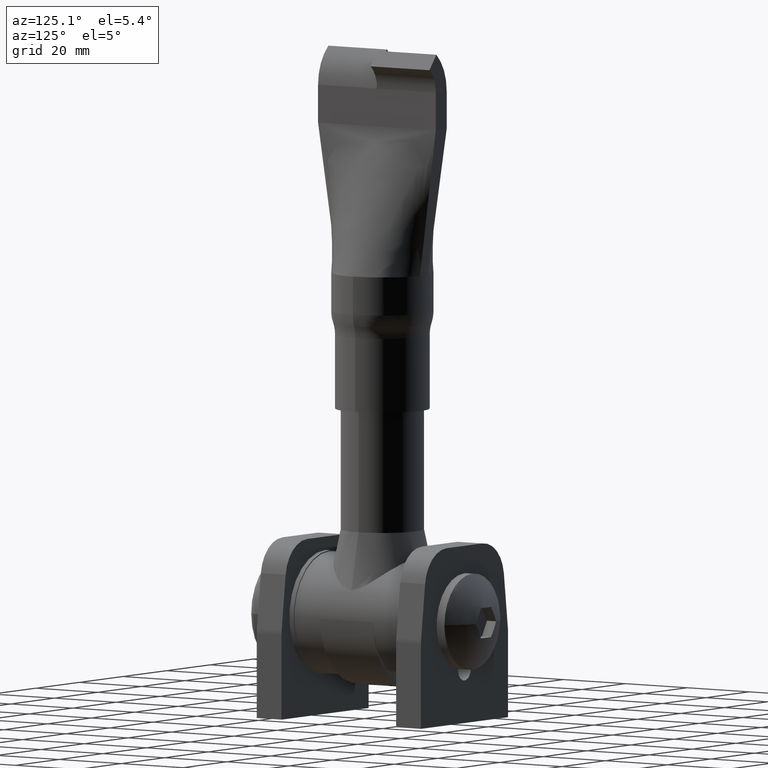
[diagram: clean part render]
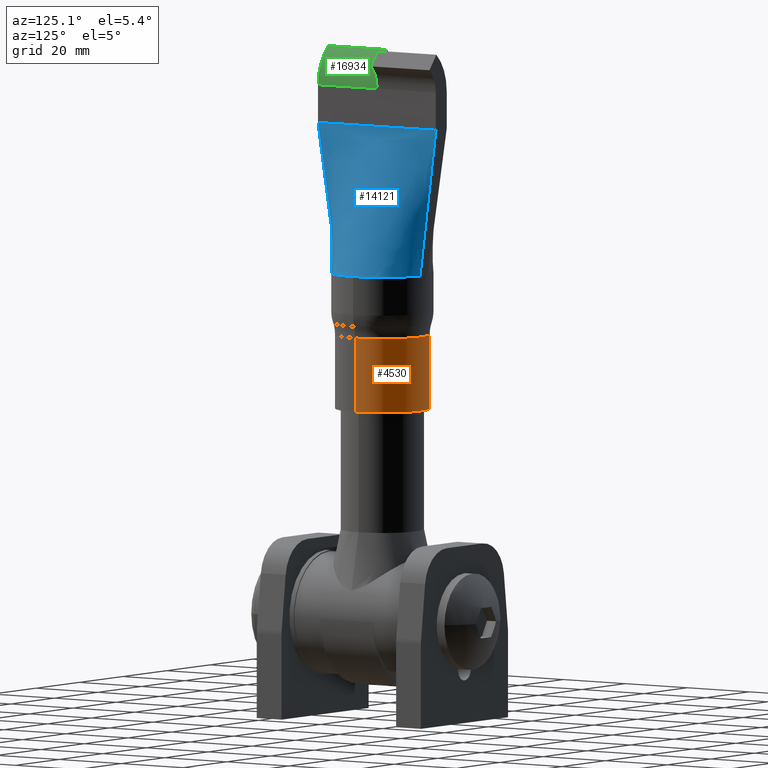
[diagram: same view with three faces highlighted in distinct colors, each labeled with its STEP entity id]
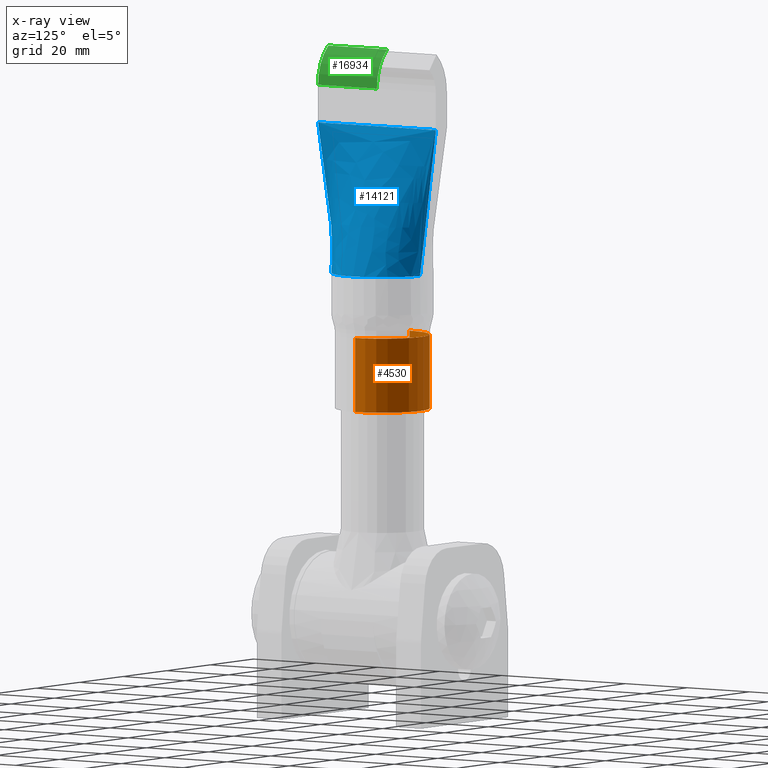
[diagram: x-ray of the same camera — body ghosted, the three highlighted faces saturated]
A machine part, auxiliary view with three faces highlighted in distinct colors.
The next image is the same camera in x-ray (body ghosted, the three faces saturated) — at least one of them is partly hidden behind the body in this view.
Their STEP definitions:

[orange] entity #4530 — the highlighted cylindrical surface (partial cylindrical patch) has radius 12.5 mm, axis along (-0, -0, -1).
#552 = AXIS2_PLACEMENT_3D ( 'NONE', #2511, #5580, #16407 ) ;
#1110 = LINE ( 'NONE', #7463, #17136 ) ;
#1958 = EDGE_CURVE ( 'NONE', #2728, #19143, #1110, .T. ) ;
#2511 = CARTESIAN_POINT ( 'NONE',  ( 0.0000000000000000000, 0.0000000000000000000, 0.0000000000000000000 ) ) ;
#2728 = VERTEX_POINT ( 'NONE', #11060 ) ;
#2984 = DIRECTION ( 'NONE',  ( -0.0000000000000000000, -0.0000000000000000000, -1.000000000000000000 ) ) ;
#3355 = LINE ( 'NONE', #18503, #19380 ) ;
#4352 = CARTESIAN_POINT ( 'NONE',  ( 0.0000000000000000000, 0.0000000000000000000, 24.00000000000000000 ) ) ;
#4530 = ADVANCED_FACE ( 'NONE', ( #20133 ), #15738, .T. ) ;
#5189 = ORIENTED_EDGE ( 'NONE', *, *, #14410, .T. ) ;
#5375 = CARTESIAN_POINT ( 'NONE',  ( 0.0000000000000000000, 0.0000000000000000000, 19.64110105645932300 ) ) ;
#5580 = DIRECTION ( 'NONE',  ( 0.0000000000000000000, 0.0000000000000000000, 1.000000000000000000 ) ) ;
#6534 = CARTESIAN_POINT ( 'NONE',  ( -12.50000000000000000, 0.0000000000000000000, 19.64110105645932300 ) ) ;
#7463 = CARTESIAN_POINT ( 'NONE',  ( 12.50000000000000000, 1.530808498934191500E-015, 24.00000000000000000 ) ) ;
#7758 = EDGE_LOOP ( 'NONE', ( #18761, #12430, #5189, #11415 ) ) ;
#8292 = AXIS2_PLACEMENT_3D ( 'NONE', #4352, #12292, #13739 ) ;
#8785 = CIRCLE ( 'NONE', #10235, 12.50000000000000000 ) ;
#8961 = DIRECTION ( 'NONE',  ( -0.0000000000000000000, -0.0000000000000000000, -1.000000000000000000 ) ) ;
#9144 = EDGE_CURVE ( 'NONE', #18321, #2728, #8785, .T. ) ;
#10235 = AXIS2_PLACEMENT_3D ( 'NONE', #5375, #16519, #18793 ) ;
#11060 = CARTESIAN_POINT ( 'NONE',  ( 12.50000000000000000, 1.530808498934191500E-015, 19.64110105645932300 ) ) ;
#11164 = CIRCLE ( 'NONE', #552, 12.50000000000000000 ) ;
#11415 = ORIENTED_EDGE ( 'NONE', *, *, #17941, .F. ) ;
#12292 = DIRECTION ( 'NONE',  ( -0.0000000000000000000, -0.0000000000000000000, -1.000000000000000000 ) ) ;
#12430 = ORIENTED_EDGE ( 'NONE', *, *, #1958, .T. ) ;
#12610 = CARTESIAN_POINT ( 'NONE',  ( 12.50000000000000000, 1.530808498934191500E-015, 0.0000000000000000000 ) ) ;
#13636 = VERTEX_POINT ( 'NONE', #18247 ) ;
#13739 = DIRECTION ( 'NONE',  ( -1.000000000000000000, 0.0000000000000000000, 0.0000000000000000000 ) ) ;
#14410 = EDGE_CURVE ( 'NONE', #19143, #13636, #11164, .T. ) ;
#15738 = CYLINDRICAL_SURFACE ( 'NONE', #8292, 12.50000000000000000 ) ;
#16407 = DIRECTION ( 'NONE',  ( 1.000000000000000000, 0.0000000000000000000, 0.0000000000000000000 ) ) ;
#16519 = DIRECTION ( 'NONE',  ( -0.0000000000000000000, -0.0000000000000000000, -1.000000000000000000 ) ) ;
#17136 = VECTOR ( 'NONE', #8961, 1000.000000000000000 ) ;
#17941 = EDGE_CURVE ( 'NONE', #18321, #13636, #3355, .T. ) ;
#18247 = CARTESIAN_POINT ( 'NONE',  ( -12.50000000000000000, 0.0000000000000000000, 0.0000000000000000000 ) ) ;
#18321 = VERTEX_POINT ( 'NONE', #6534 ) ;
#18503 = CARTESIAN_POINT ( 'NONE',  ( -12.50000000000000000, 0.0000000000000000000, 24.00000000000000000 ) ) ;
#18761 = ORIENTED_EDGE ( 'NONE', *, *, #9144, .T. ) ;
#18793 = DIRECTION ( 'NONE',  ( 1.000000000000000000, 0.0000000000000000000, 0.0000000000000000000 ) ) ;
#19143 = VERTEX_POINT ( 'NONE', #12610 ) ;
#19380 = VECTOR ( 'NONE', #2984, 1000.000000000000000 ) ;
#20133 = FACE_OUTER_BOUND ( 'NONE', #7758, .T. ) ;

[blue] entity #14121 — the highlighted face is a freeform B-spline surface patch.
#3 = CARTESIAN_POINT ( 'NONE',  ( 9.826572572018319500, 9.376442569900213200, 35.61000000000000700 ) ) ;
#76 = CARTESIAN_POINT ( 'NONE',  ( 12.65540720196998200, 4.793425212886243800, 36.00000000000000000 ) ) ;
#148 = CARTESIAN_POINT ( 'NONE',  ( 2.500000000000000400, 15.83333333333333400, 75.00000000000001400 ) ) ;
#212 = CARTESIAN_POINT ( 'NONE',  ( 2.500000000000000900, 19.25333333333333400, 75.00000000000001400 ) ) ;
#263 = B_SPLINE_SURFACE_WITH_KNOTS ( 'NONE', 3, 1, ( 
 ( #13440, #5702, #19743, #1199 ),
 ( #5899, #16592, #8758, #5824 ),
 ( #1075, #11997, #19881, #19612 ),
 ( #10305, #16662, #18219, #1269 ),
 ( #8825, #12131, #10502, #2847 ),
 ( #11930, #13712, #16455, #18023 ),
 ( #15001, #18295, #1002, #16521 ),
 ( #19670, #8958, #13568, #4259 ),
 ( #4324, #12070, #2631, #13508 ),
 ( #4194, #15065, #19813, #5768 ),
 ( #15199, #16729, #13838, #3582 ),
 ( #3111, #18839, #12728, #499 ),
 ( #5474, #15289, #14210, #8034 ),
 ( #942, #15272, #5976, #12401 ),
 ( #2123, #13592, #16682, #15543 ),
 ( #815, #9980, #15779, #13831 ),
 ( #2330, #12362, #1428, #15301 ),
 ( #4633, #16975, #12435, #1370 ),
 ( #20065, #18686, #16908, #9132 ),
 ( #12234, #7637, #2950, #10744 ),
 ( #4708, #14024, #13806, #15490 ),
 ( #18469, #7841, #15362, #4430 ),
 ( #1498, #19993, #9196, #9260 ),
 ( #9326, #76, #6004, #10944 ),
 ( #12298, #4500, #6210, #6071 ),
 ( #16840, #17042, #15558, #3094 ),
 ( #10813, #20134, #1571, #3027 ),
 ( #3, #18398, #7776, #4565 ),
 ( #6279, #9395, #17115, #13875 ),
 ( #15431, #6137, #18617, #7559 ),
 ( #7711, #18545, #10879, #3157 ),
 ( #1643, #10670, #13952, #12508 ),
 ( #3224, #4846, #9531, #17436 ),
 ( #15625, #8174, #148, #5041 ),
 ( #14343, #6601, #9722, #3418 ),
 ( #284, #1844, #11200, #8107 ),
 ( #7974, #11268, #19026, #15691 ),
 ( #6418, #14156, #18826, #12709 ),
 ( #1712, #4977, #212, #15882 ),
 ( #11075, #418, #1973, #12838 ) ),
 .UNSPECIFIED., .F., .F., .F.,
 ( 4, 3, 2, 2, 2, 2, 2, 2, 2, 2, 2, 2, 2, 2, 2, 2, 2, 3, 4 ),
 ( 2, 1, 1, 2 ),
 ( -0.01000000000000000000, 0.0000000000000000000, 0.06249999999999997200, 0.1250000000000000000, 0.1875000000000000300, 0.2500000000000000600, 0.3125000000000000600, 0.3750000000000001100, 0.4375000000000001100, 0.5000000000000001100, 0.5625000000000001100, 0.6250000000000000000, 0.6875000000000000000, 0.7500000000000000000, 0.8125000000000000000, 0.8749999999999998900, 0.9374999999999998900, 1.000000000000000000, 1.010000000000000000 ),
 ( -0.01000000000000000000, 0.0000000000000000000, 1.000000000000000000, 1.012212258122319400 ),
 .UNSPECIFIED. ) ;
#284 = CARTESIAN_POINT ( 'NONE',  ( 2.312203711858454200, 13.26291487679088900, 35.61000000000000700 ) ) ;
#418 = CARTESIAN_POINT ( 'NONE',  ( 1.495730882273296000, 13.41955470527702600, 36.00000000000000000 ) ) ;
#499 = CARTESIAN_POINT ( 'NONE',  ( 2.426279683299224400, -10.28923208014978200, 75.47627806677046200 ) ) ;
#777 = CIRCLE ( 'NONE', #2973, 13.50000000000000000 ) ;
#815 = CARTESIAN_POINT ( 'NONE',  ( 11.96129968607907800, -6.513138373428831500, 35.60999999999999200 ) ) ;
#942 = CARTESIAN_POINT ( 'NONE',  ( 10.41438548326907900, -8.737926560234189600, 35.60999999999999200 ) ) ;
#1002 = CARTESIAN_POINT ( 'NONE',  ( 2.499999999999996400, -15.83333333333333000, 75.00000000000001400 ) ) ;
#1030 = CARTESIAN_POINT ( 'NONE',  ( 0.0000000000000000000, 0.0000000000000000000, 36.00000000000000000 ) ) ;
#1075 = CARTESIAN_POINT ( 'NONE',  ( 1.664394249639253200, -13.33896963059165600, 35.60999999999999200 ) ) ;
#1199 = CARTESIAN_POINT ( 'NONE',  ( 2.512264393689948700, -19.45279049646312300, 75.47627806677046200 ) ) ;
#1269 = CARTESIAN_POINT ( 'NONE',  ( 2.509023198865763000, -19.06857631137982200, 75.47627806677046200 ) ) ;
#1370 = CARTESIAN_POINT ( 'NONE',  ( 2.372160639607965700, -3.157996119076630600, 75.47627806677046200 ) ) ;
#1428 = CARTESIAN_POINT ( 'NONE',  ( 2.499999999999997800, -3.958333333333320600, 74.99999999999998600 ) ) ;
#1498 = CARTESIAN_POINT ( 'NONE',  ( 13.07279928926279000, 3.883753791603683100, 35.60999999999999200 ) ) ;
#1571 = CARTESIAN_POINT ( 'NONE',  ( 2.500000000000000400, 7.916666666666675800, 75.00000000000001400 ) ) ;
#1643 = CARTESIAN_POINT ( 'NONE',  ( 6.013042554120897200, 12.11037872755055000, 35.60999999999999200 ) ) ;
#1712 = CARTESIAN_POINT ( 'NONE',  ( 1.575041220367642500, 13.34945994146072200, 35.60999999999999200 ) ) ;
#1844 = CARTESIAN_POINT ( 'NONE',  ( 2.314063081047974500, 13.31187941596457600, 36.00000000000001400 ) ) ;
#1862 = EDGE_LOOP ( 'NONE', ( #4554, #18169, #6068, #8575, #7115 ) ) ;
#1973 = CARTESIAN_POINT ( 'NONE',  ( 2.500000000000000900, 19.38000000000000300, 75.00000000000001400 ) ) ;
#2059 = AXIS2_PLACEMENT_3D ( 'NONE', #7213, #18111, #18046 ) ;
#2123 = CARTESIAN_POINT ( 'NONE',  ( 11.48194619633858700, -7.306340436564427800, 35.61000000000002100 ) ) ;
#2206 = LINE ( 'NONE', #6659, #5851 ) ;
#2330 = CARTESIAN_POINT ( 'NONE',  ( 12.75696127398968800, -4.801776131681775100, 35.61000000000002100 ) ) ;
#2631 = CARTESIAN_POINT ( 'NONE',  ( 2.499999999999996900, -13.45833333333332900, 75.00000000000001400 ) ) ;
#2847 = CARTESIAN_POINT ( 'NONE',  ( 2.502270709648707600, -18.26813009245628200, 75.47627806677046200 ) ) ;
#2950 = CARTESIAN_POINT ( 'NONE',  ( 2.499999999999997800, -0.7916666666666556400, 75.00000000000001400 ) ) ;
#2973 = AXIS2_PLACEMENT_3D ( 'NONE', #1030, #13389, #8980 ) ;
#3027 = CARTESIAN_POINT ( 'NONE',  ( 2.404304437226515700, 7.906736530225335200, 75.47627806677049000 ) ) ;
#3094 = CARTESIAN_POINT ( 'NONE',  ( 2.391396192682701200, 6.321568369076403300, 75.47627806677049000 ) ) ;
#3111 = CARTESIAN_POINT ( 'NONE',  ( 8.596949402969132200, -10.49301619248057600, 35.61000000000002100 ) ) ;
#3157 = CARTESIAN_POINT ( 'NONE',  ( 2.449659181008081400, 12.67738901128009000, 75.47627806677049000 ) ) ;
#3224 = CARTESIAN_POINT ( 'NONE',  ( 4.735606889802664200, 12.64542937017763300, 35.60999999999999200 ) ) ;
#3418 = CARTESIAN_POINT ( 'NONE',  ( 2.495202280975660400, 17.46814921799465400, 75.47627806677046200 ) ) ;
#3582 = CARTESIAN_POINT ( 'NONE',  ( 2.434037494894349100, -11.08468754302523800, 75.47627806677046200 ) ) ;
#4194 = CARTESIAN_POINT ( 'NONE',  ( 6.663376393831208900, -11.77988815682196100, 35.61000000000002100 ) ) ;
#4259 = CARTESIAN_POINT ( 'NONE',  ( 2.472968506536327800, -15.07064039774295400, 75.47627806677046200 ) ) ;
#4324 = CARTESIAN_POINT ( 'NONE',  ( 6.013042554120896300, -12.11037872755055000, 35.60999999999999200 ) ) ;
#4430 = CARTESIAN_POINT ( 'NONE',  ( 2.367001460569730900, 1.578573858738839600, 75.47627806677046200 ) ) ;
#4500 = CARTESIAN_POINT ( 'NONE',  ( 11.86762345156344600, 6.503519841678707900, 36.00000000000001400 ) ) ;
#4554 = ORIENTED_EDGE ( 'NONE', *, *, #11292, .T. ) ;
#4565 = CARTESIAN_POINT ( 'NONE',  ( 2.411411885741195200, 8.700254994273084500, 75.47627806677049000 ) ) ;
#4633 = CARTESIAN_POINT ( 'NONE',  ( 13.07279928926279300, -3.883753791603685700, 35.60999999999999200 ) ) ;
#4708 = CARTESIAN_POINT ( 'NONE',  ( 13.61000000000000500, 0.9886205055789750700, 35.61000000000000700 ) ) ;
#4846 = CARTESIAN_POINT ( 'NONE',  ( 4.713472168121449500, 12.66915449192504900, 36.00000000000000000 ) ) ;
#4977 = CARTESIAN_POINT ( 'NONE',  ( 1.584199228086774700, 13.40791413345946400, 36.00000000000000000 ) ) ;
#5041 = CARTESIAN_POINT ( 'NONE',  ( 2.480551781824935600, 15.86940375079042000, 75.47627806677046200 ) ) ;
#5474 = CARTESIAN_POINT ( 'NONE',  ( 9.826572572018317700, -9.376442569900216700, 35.60999999999999200 ) ) ;
#5702 = CARTESIAN_POINT ( 'NONE',  ( 1.495730882273293800, -13.41955470527702800, 36.00000000000000000 ) ) ;
#5768 = CARTESIAN_POINT ( 'NONE',  ( 2.449659181008078300, -12.67738901128007700, 75.47627806677046200 ) ) ;
#5771 = DIRECTION ( 'NONE',  ( -1.141265444721583800E-016, -1.000000000000000000, 0.0000000000000000000 ) ) ;
#5824 = CARTESIAN_POINT ( 'NONE',  ( 2.511183995415220000, -19.32471910143535600, 75.47627806677046200 ) ) ;
#5851 = VECTOR ( 'NONE', #17362, 1000.000000000000100 ) ;
#5899 = CARTESIAN_POINT ( 'NONE',  ( 1.575041220367639600, -13.34945994146072800, 35.60999999999999200 ) ) ;
#5976 = CARTESIAN_POINT ( 'NONE',  ( 2.499999999999997300, -7.916666666666659000, 75.00000000000001400 ) ) ;
#6004 = CARTESIAN_POINT ( 'NONE',  ( 2.499999999999999100, 3.958333333333343300, 75.00000000000001400 ) ) ;
#6017 = EDGE_CURVE ( 'NONE', #11182, #11294, #11951, .T. ) ;
#6056 = CARTESIAN_POINT ( 'NONE',  ( 2.500000000000000900, 19.00000000000000000, 74.99999999999998600 ) ) ;
#6068 = ORIENTED_EDGE ( 'NONE', *, *, #6017, .F. ) ;
#6071 = CARTESIAN_POINT ( 'NONE',  ( 2.385600164416814100, 5.529920267417656600, 75.47627806677049000 ) ) ;
#6137 = CARTESIAN_POINT ( 'NONE',  ( 7.901335645296690300, 10.97244395658176000, 36.00000000000002800 ) ) ;
#6210 = CARTESIAN_POINT ( 'NONE',  ( 2.499999999999999600, 5.541666666666675800, 75.00000000000001400 ) ) ;
#6279 = CARTESIAN_POINT ( 'NONE',  ( 8.596949402969132200, 10.49301619248057400, 35.61000000000000700 ) ) ;
#6418 = CARTESIAN_POINT ( 'NONE',  ( 1.664394249639255900, 13.33896963059165200, 35.60999999999999200 ) ) ;
#6601 = CARTESIAN_POINT ( 'NONE',  ( 2.892860925169243200, 13.20102113966139300, 36.00000000000001400 ) ) ;
#6659 = CARTESIAN_POINT ( 'NONE',  ( 2.130567959856863000, -16.19231649491217300, 55.50000000000000000 ) ) ;
#7115 = ORIENTED_EDGE ( 'NONE', *, *, #13807, .F. ) ;
#7213 = CARTESIAN_POINT ( 'NONE',  ( 0.0000000000000000000, 0.0000000000000000000, 36.00000000000000000 ) ) ;
#7559 = CARTESIAN_POINT ( 'NONE',  ( 2.434037494894352600, 11.08468754302525400, 75.47627806677049000 ) ) ;
#7594 = EDGE_CURVE ( 'NONE', #16131, #11294, #777, .T. ) ;
#7637 = CARTESIAN_POINT ( 'NONE',  ( 13.49999999999999800, -0.9866704675699420300, 36.00000000000001400 ) ) ;
#7711 = CARTESIAN_POINT ( 'NONE',  ( 6.663376393831210700, 11.77988815682195800, 35.60999999999999200 ) ) ;
#7776 = CARTESIAN_POINT ( 'NONE',  ( 2.500000000000000400, 8.708333333333342800, 75.00000000000001400 ) ) ;
#7841 = CARTESIAN_POINT ( 'NONE',  ( 13.39057716420164300, 1.973062615734199500, 36.00000000000000000 ) ) ;
#7846 = VECTOR ( 'NONE', #19681, 1000.000000000000200 ) ;
#7974 = CARTESIAN_POINT ( 'NONE',  ( 1.753747278910869500, 13.32847931972258200, 35.60999999999999200 ) ) ;
#8034 = CARTESIAN_POINT ( 'NONE',  ( 2.411411885741191700, -8.700254994273068500, 75.47627806677046200 ) ) ;
#8107 = CARTESIAN_POINT ( 'NONE',  ( 2.502270709648711100, 18.26813009245628200, 75.47627806677046200 ) ) ;
#8174 = CARTESIAN_POINT ( 'NONE',  ( 4.092516140771758500, 12.87970943382189200, 36.00000000000000000 ) ) ;
#8450 = CIRCLE ( 'NONE', #2059, 13.50000000000000000 ) ;
#8575 = ORIENTED_EDGE ( 'NONE', *, *, #13101, .T. ) ;
#8611 = VERTEX_POINT ( 'NONE', #12540 ) ;
#8758 = CARTESIAN_POINT ( 'NONE',  ( 2.499999999999996400, -19.25333333333333400, 75.00000000000001400 ) ) ;
#8825 = CARTESIAN_POINT ( 'NONE',  ( 2.312203711858449800, -13.26291487679088700, 35.60999999999999200 ) ) ;
#8958 = CARTESIAN_POINT ( 'NONE',  ( 4.713472168121447800, -12.66915449192504900, 36.00000000000001400 ) ) ;
#8980 = DIRECTION ( 'NONE',  ( 1.000000000000000000, 0.0000000000000000000, 0.0000000000000000000 ) ) ;
#9132 = CARTESIAN_POINT ( 'NONE',  ( 2.367001460569730000, -1.578573858738815200, 75.47627806677046200 ) ) ;
#9196 = CARTESIAN_POINT ( 'NONE',  ( 2.499999999999998700, 3.166666666666678100, 75.00000000000001400 ) ) ;
#9260 = CARTESIAN_POINT ( 'NONE',  ( 2.372160639607966600, 3.157996119076655500, 75.47627806677046200 ) ) ;
#9326 = CARTESIAN_POINT ( 'NONE',  ( 12.75696127398968300, 4.801776131681773300, 35.60999999999999200 ) ) ;
#9395 = CARTESIAN_POINT ( 'NONE',  ( 8.536583567296171200, 10.49102263281905000, 36.00000000000001400 ) ) ;
#9434 = VERTEX_POINT ( 'NONE', #11704 ) ;
#9531 = CARTESIAN_POINT ( 'NONE',  ( 2.500000000000000400, 15.04166666666666800, 75.00000000000001400 ) ) ;
#9722 = CARTESIAN_POINT ( 'NONE',  ( 2.500000000000000400, 17.41666666666666400, 75.00000000000001400 ) ) ;
#9980 = CARTESIAN_POINT ( 'NONE',  ( 11.86762345156344400, -6.503519841678710600, 36.00000000000000000 ) ) ;
#10305 = CARTESIAN_POINT ( 'NONE',  ( 1.753747278910866600, -13.32847931972258400, 35.60999999999999200 ) ) ;
#10491 = LINE ( 'NONE', #15070, #17192 ) ;
#10502 = CARTESIAN_POINT ( 'NONE',  ( 2.499999999999996400, -18.20833333333333200, 75.00000000000001400 ) ) ;
#10670 = CARTESIAN_POINT ( 'NONE',  ( 5.978259954575145600, 12.12372481275632200, 36.00000000000000000 ) ) ;
#10744 = CARTESIAN_POINT ( 'NONE',  ( 2.365665160654484300, -0.7892852299151913400, 75.47627806677046200 ) ) ;
#10813 = CARTESIAN_POINT ( 'NONE',  ( 10.41438548326907900, 8.737926560234187800, 35.60999999999999200 ) ) ;
#10879 = CARTESIAN_POINT ( 'NONE',  ( 2.500000000000000400, 12.66666666666667300, 75.00000000000001400 ) ) ;
#10944 = CARTESIAN_POINT ( 'NONE',  ( 2.375979545912279900, 3.948134975744390700, 75.47627806677049000 ) ) ;
#11075 = CARTESIAN_POINT ( 'NONE',  ( 1.485688191096028900, 13.35995025232979400, 35.60999999999999200 ) ) ;
#11182 = VERTEX_POINT ( 'NONE', #6056 ) ;
#11200 = CARTESIAN_POINT ( 'NONE',  ( 2.500000000000000400, 18.20833333333333200, 75.00000000000001400 ) ) ;
#11268 = CARTESIAN_POINT ( 'NONE',  ( 1.761135919713732200, 13.38463298982434000, 36.00000000000000000 ) ) ;
#11292 = EDGE_CURVE ( 'NONE', #9434, #16131, #8450, .T. ) ;
#11294 = VERTEX_POINT ( 'NONE', #11952 ) ;
#11704 = CARTESIAN_POINT ( 'NONE',  ( 1.761143528652265200, -13.38469061141342700, 36.00000000000000000 ) ) ;
#11930 = CARTESIAN_POINT ( 'NONE',  ( 2.896789534420932900, -13.15886468439133900, 35.60999999999999200 ) ) ;
#11944 = CARTESIAN_POINT ( 'NONE',  ( 13.50000000000000200, -1.684983764617499400E-015, 36.00000000000000700 ) ) ;
#11951 = LINE ( 'NONE', #15208, #7846 ) ;
#11952 = CARTESIAN_POINT ( 'NONE',  ( 1.761144577778942300, 13.38469859784188300, 36.00000000000000000 ) ) ;
#11997 = CARTESIAN_POINT ( 'NONE',  ( 1.672667573900250800, -13.39627356164190400, 36.00000000000000000 ) ) ;
#12070 = CARTESIAN_POINT ( 'NONE',  ( 5.978259954575145600, -12.12372481275632200, 36.00000000000000000 ) ) ;
#12131 = CARTESIAN_POINT ( 'NONE',  ( 2.314063081047970100, -13.31187941596457400, 36.00000000000000000 ) ) ;
#12234 = CARTESIAN_POINT ( 'NONE',  ( 13.60999999999999900, -0.9886205055789748500, 35.61000000000000700 ) ) ;
#12298 = CARTESIAN_POINT ( 'NONE',  ( 11.96129968607908200, 6.513138373428828000, 35.61000000000000700 ) ) ;
#12362 = CARTESIAN_POINT ( 'NONE',  ( 12.65540720196998800, -4.793425212886246500, 36.00000000000002800 ) ) ;
#12401 = CARTESIAN_POINT ( 'NONE',  ( 2.404304437226512500, -7.906736530225315600, 75.47627806677046200 ) ) ;
#12435 = CARTESIAN_POINT ( 'NONE',  ( 2.499999999999997800, -3.166666666666653600, 74.99999999999998600 ) ) ;
#12508 = CARTESIAN_POINT ( 'NONE',  ( 2.457522591618201500, 13.47463191707887200, 75.47627806677049000 ) ) ;
#12540 = CARTESIAN_POINT ( 'NONE',  ( 2.499999999999996400, -19.00000000000000000, 75.00000000000001400 ) ) ;
#12709 = CARTESIAN_POINT ( 'NONE',  ( 2.510103597140496100, 19.19664770640758900, 75.47627806677046200 ) ) ;
#12728 = CARTESIAN_POINT ( 'NONE',  ( 2.499999999999996900, -10.29166666666665900, 75.00000000000001400 ) ) ;
#12838 = CARTESIAN_POINT ( 'NONE',  ( 2.512264393689953600, 19.45279049646312300, 75.47627806677046200 ) ) ;
#13101 = EDGE_CURVE ( 'NONE', #11182, #8611, #10491, .T. ) ;
#13377 = FACE_OUTER_BOUND ( 'NONE', #1862, .T. ) ;
#13389 = DIRECTION ( 'NONE',  ( 0.0000000000000000000, 0.0000000000000000000, 1.000000000000000000 ) ) ;
#13440 = CARTESIAN_POINT ( 'NONE',  ( 1.485688191096026200, -13.35995025232979900, 35.60999999999999200 ) ) ;
#13508 = CARTESIAN_POINT ( 'NONE',  ( 2.457522591618198000, -13.47463191707886100, 75.47627806677046200 ) ) ;
#13568 = CARTESIAN_POINT ( 'NONE',  ( 2.499999999999996900, -15.04166666666666400, 75.00000000000001400 ) ) ;
#13592 = CARTESIAN_POINT ( 'NONE',  ( 11.39301603597880000, -7.296706702869070000, 36.00000000000002800 ) ) ;
#13712 = CARTESIAN_POINT ( 'NONE',  ( 2.892860925169240500, -13.20102113966139300, 36.00000000000000000 ) ) ;
#13806 = CARTESIAN_POINT ( 'NONE',  ( 2.499999999999998200, 0.7916666666666772900, 74.99999999999998600 ) ) ;
#13807 = EDGE_CURVE ( 'NONE', #9434, #8611, #2206, .T. ) ;
#13831 = CARTESIAN_POINT ( 'NONE',  ( 2.385600164416812300, -5.529920267417635300, 75.47627806677046200 ) ) ;
#13838 = CARTESIAN_POINT ( 'NONE',  ( 2.499999999999996900, -11.08333333333332500, 75.00000000000001400 ) ) ;
#13875 = CARTESIAN_POINT ( 'NONE',  ( 2.426279683299227900, 10.28923208014979600, 75.47627806677049000 ) ) ;
#13952 = CARTESIAN_POINT ( 'NONE',  ( 2.500000000000000400, 13.45833333333333700, 75.00000000000001400 ) ) ;
#14024 = CARTESIAN_POINT ( 'NONE',  ( 13.50000000000000400, 0.9866704675699424800, 36.00000000000001400 ) ) ;
#14121 = ADVANCED_FACE ( 'NONE', ( #13377 ), #263, .T. ) ;
#14156 = CARTESIAN_POINT ( 'NONE',  ( 1.672667573900253400, 13.39627356164190200, 36.00000000000000000 ) ) ;
#14210 = CARTESIAN_POINT ( 'NONE',  ( 2.499999999999996900, -8.708333333333325000, 75.00000000000001400 ) ) ;
#14343 = CARTESIAN_POINT ( 'NONE',  ( 2.896789534420935100, 13.15886468439133900, 35.61000000000000700 ) ) ;
#15001 = CARTESIAN_POINT ( 'NONE',  ( 4.108441302179472600, -12.85017319482678000, 35.61000000000000700 ) ) ;
#15065 = CARTESIAN_POINT ( 'NONE',  ( 6.622154845377434800, -11.78866814206795000, 36.00000000000002800 ) ) ;
#15070 = CARTESIAN_POINT ( 'NONE',  ( 2.500000000000000900, 19.00000000000000000, 75.00000000000001400 ) ) ;
#15199 = CARTESIAN_POINT ( 'NONE',  ( 7.955349001749661800, -10.97133506281424600, 35.61000000000002100 ) ) ;
#15208 = CARTESIAN_POINT ( 'NONE',  ( 2.130567959856866500, 16.19231649491217000, 55.50000000000000000 ) ) ;
#15272 = CARTESIAN_POINT ( 'NONE',  ( 10.33602523095948400, -8.729795274159263500, 36.00000000000000000 ) ) ;
#15289 = CARTESIAN_POINT ( 'NONE',  ( 9.754032249523085300, -9.369827626963910900, 36.00000000000000000 ) ) ;
#15301 = CARTESIAN_POINT ( 'NONE',  ( 2.375979545912278600, -3.948134975744367100, 75.47627806677046200 ) ) ;
#15362 = CARTESIAN_POINT ( 'NONE',  ( 2.499999999999998700, 1.583333333333345200, 75.00000000000001400 ) ) ;
#15431 = CARTESIAN_POINT ( 'NONE',  ( 7.955349001749656400, 10.97133506281424400, 35.61000000000002100 ) ) ;
#15490 = CARTESIAN_POINT ( 'NONE',  ( 2.365665160654484700, 0.7892852299152132200, 75.47627806677046200 ) ) ;
#15543 = CARTESIAN_POINT ( 'NONE',  ( 2.391396192682699000, -6.321568369076384600, 75.47627806677046200 ) ) ;
#15558 = CARTESIAN_POINT ( 'NONE',  ( 2.500000000000000000, 6.333333333333342800, 75.00000000000001400 ) ) ;
#15625 = CARTESIAN_POINT ( 'NONE',  ( 4.108441302179477000, 12.85017319482677900, 35.60999999999999200 ) ) ;
#15691 = CARTESIAN_POINT ( 'NONE',  ( 2.509023198865767000, 19.06857631137982200, 75.47627806677046200 ) ) ;
#15779 = CARTESIAN_POINT ( 'NONE',  ( 2.499999999999997800, -5.541666666666655400, 75.00000000000001400 ) ) ;
#15882 = CARTESIAN_POINT ( 'NONE',  ( 2.511183995415224900, 19.32471910143535600, 75.47627806677046200 ) ) ;
#16131 = VERTEX_POINT ( 'NONE', #11944 ) ;
#16455 = CARTESIAN_POINT ( 'NONE',  ( 2.499999999999996400, -17.41666666666666800, 75.00000000000001400 ) ) ;
#16521 = CARTESIAN_POINT ( 'NONE',  ( 2.480551781824931600, -15.86940375079041700, 75.47627806677046200 ) ) ;
#16592 = CARTESIAN_POINT ( 'NONE',  ( 1.584199228086772300, -13.40791413345946600, 36.00000000000000000 ) ) ;
#16662 = CARTESIAN_POINT ( 'NONE',  ( 1.761135919713729300, -13.38463298982434100, 36.00000000000000000 ) ) ;
#16682 = CARTESIAN_POINT ( 'NONE',  ( 2.499999999999997800, -6.333333333333323300, 75.00000000000001400 ) ) ;
#16729 = CARTESIAN_POINT ( 'NONE',  ( 7.901335645296695600, -10.97244395658176200, 36.00000000000002800 ) ) ;
#16840 = CARTESIAN_POINT ( 'NONE',  ( 11.48194619633858500, 7.306340436564426900, 35.60999999999999200 ) ) ;
#16908 = CARTESIAN_POINT ( 'NONE',  ( 2.499999999999997800, -1.583333333333320800, 74.99999999999998600 ) ) ;
#16975 = CARTESIAN_POINT ( 'NONE',  ( 12.96811810818098500, -3.876653919079556600, 36.00000000000000000 ) ) ;
#17042 = CARTESIAN_POINT ( 'NONE',  ( 11.39301603597879800, 7.296706702869069100, 36.00000000000000000 ) ) ;
#17115 = CARTESIAN_POINT ( 'NONE',  ( 2.500000000000000400, 10.29166666666667500, 75.00000000000001400 ) ) ;
#17192 = VECTOR ( 'NONE', #5771, 1000.000000000000000 ) ;
#17362 = DIRECTION ( 'NONE',  ( 0.01874855852282889000, -0.1424890447735001300, 0.9896187971501205800 ) ) ;
#17436 = CARTESIAN_POINT ( 'NONE',  ( 2.472968506536331400, 15.07064039774295800, 75.47627806677046200 ) ) ;
#18023 = CARTESIAN_POINT ( 'NONE',  ( 2.495202280975656400, -17.46814921799465700, 75.47627806677046200 ) ) ;
#18046 = DIRECTION ( 'NONE',  ( 1.000000000000000000, 0.0000000000000000000, 0.0000000000000000000 ) ) ;
#18111 = DIRECTION ( 'NONE',  ( 0.0000000000000000000, 0.0000000000000000000, 1.000000000000000000 ) ) ;
#18169 = ORIENTED_EDGE ( 'NONE', *, *, #7594, .T. ) ;
#18219 = CARTESIAN_POINT ( 'NONE',  ( 2.499999999999996400, -19.00000000000000000, 75.00000000000001400 ) ) ;
#18295 = CARTESIAN_POINT ( 'NONE',  ( 4.092516140771755000, -12.87970943382189400, 36.00000000000001400 ) ) ;
#18398 = CARTESIAN_POINT ( 'NONE',  ( 9.754032249523088900, 9.369827626963907400, 36.00000000000001400 ) ) ;
#18469 = CARTESIAN_POINT ( 'NONE',  ( 13.49948293584365900, 1.976959908558208100, 35.60999999999999200 ) ) ;
#18545 = CARTESIAN_POINT ( 'NONE',  ( 6.622154845377436600, 11.78866814206794400, 36.00000000000000000 ) ) ;
#18617 = CARTESIAN_POINT ( 'NONE',  ( 2.500000000000000400, 11.08333333333334100, 75.00000000000001400 ) ) ;
#18686 = CARTESIAN_POINT ( 'NONE',  ( 13.39057716420164500, -1.973062615734200800, 36.00000000000000000 ) ) ;
#18826 = CARTESIAN_POINT ( 'NONE',  ( 2.500000000000000900, 19.12666666666666500, 75.00000000000001400 ) ) ;
#18839 = CARTESIAN_POINT ( 'NONE',  ( 8.536583567296171200, -10.49102263281905100, 36.00000000000002800 ) ) ;
#19026 = CARTESIAN_POINT ( 'NONE',  ( 2.500000000000000900, 19.00000000000000000, 75.00000000000001400 ) ) ;
#19612 = CARTESIAN_POINT ( 'NONE',  ( 2.510103597140491200, -19.19664770640758900, 75.47627806677046200 ) ) ;
#19670 = CARTESIAN_POINT ( 'NONE',  ( 4.735606889802662400, -12.64542937017763300, 35.61000000000000700 ) ) ;
#19681 = DIRECTION ( 'NONE',  ( -0.01874855852282891100, -0.1424890447735001600, -0.9896187971501204700 ) ) ;
#19743 = CARTESIAN_POINT ( 'NONE',  ( 2.499999999999996400, -19.38000000000000300, 75.00000000000001400 ) ) ;
#19813 = CARTESIAN_POINT ( 'NONE',  ( 2.499999999999996900, -12.66666666666666100, 75.00000000000001400 ) ) ;
#19881 = CARTESIAN_POINT ( 'NONE',  ( 2.499999999999996400, -19.12666666666666500, 75.00000000000001400 ) ) ;
#19993 = CARTESIAN_POINT ( 'NONE',  ( 12.96811810818098100, 3.876653919079553900, 36.00000000000000000 ) ) ;
#20065 = CARTESIAN_POINT ( 'NONE',  ( 13.49948293584366100, -1.976959908558209500, 35.60999999999999200 ) ) ;
#20134 = CARTESIAN_POINT ( 'NONE',  ( 10.33602523095948400, 8.729795274159261700, 36.00000000000000000 ) ) ;

[green] entity #16934 — the highlighted cylindrical surface (partial cylindrical patch) has radius 12.9262 mm, axis along (0, 1, 0).
#821 = AXIS2_PLACEMENT_3D ( 'NONE', #15256, #10361, #12193 ) ;
#1817 = EDGE_CURVE ( 'NONE', #8806, #12641, #12545, .T. ) ;
#2342 = CARTESIAN_POINT ( 'NONE',  ( 2.499999999999998700, -0.04999999999999857300, 84.99999999999998600 ) ) ;
#2591 = DIRECTION ( 'NONE',  ( 7.250698937691729500E-017, 1.000000000000000000, 8.852360213332476700E-017 ) ) ;
#2707 = EDGE_CURVE ( 'NONE', #12641, #15595, #19795, .T. ) ;
#3651 = LINE ( 'NONE', #2342, #6805 ) ;
#4566 = CIRCLE ( 'NONE', #821, 12.92623355861338700 ) ;
#5500 = DIRECTION ( 'NONE',  ( 0.0000000000000000000, 1.000000000000000000, -0.0000000000000000000 ) ) ;
#5659 = ORIENTED_EDGE ( 'NONE', *, *, #9379, .T. ) ;
#5787 = CARTESIAN_POINT ( 'NONE',  ( -2.235537374912333100, -0.04999999999999857300, 95.00000050190638500 ) ) ;
#6805 = VECTOR ( 'NONE', #10080, 1000.000000000000000 ) ;
#7597 = EDGE_LOOP ( 'NONE', ( #15834, #8830, #5659, #20089 ) ) ;
#7958 = CARTESIAN_POINT ( 'NONE',  ( -10.42623355861338500, -0.04999999999999796300, 84.99999999999998600 ) ) ;
#8229 = CYLINDRICAL_SURFACE ( 'NONE', #18781, 12.92623355861338700 ) ;
#8444 = VECTOR ( 'NONE', #2591, 1000.000000000000000 ) ;
#8668 = CARTESIAN_POINT ( 'NONE',  ( 2.499999999999998700, -0.04999999999999796300, 84.99999999999998600 ) ) ;
#8806 = VERTEX_POINT ( 'NONE', #13286 ) ;
#8830 = ORIENTED_EDGE ( 'NONE', *, *, #17057, .T. ) ;
#8962 = FACE_OUTER_BOUND ( 'NONE', #7597, .T. ) ;
#9379 = EDGE_CURVE ( 'NONE', #14453, #15595, #3651, .T. ) ;
#9820 = AXIS2_PLACEMENT_3D ( 'NONE', #7958, #17288, #10995 ) ;
#10080 = DIRECTION ( 'NONE',  ( 1.144276699193144600E-016, 1.000000000000000000, -0.0000000000000000000 ) ) ;
#10361 = DIRECTION ( 'NONE',  ( 0.0000000000000000000, 1.000000000000000000, -0.0000000000000000000 ) ) ;
#10995 = DIRECTION ( 'NONE',  ( 0.0000000000000000000, 0.0000000000000000000, 1.000000000000000000 ) ) ;
#12193 = DIRECTION ( 'NONE',  ( 0.0000000000000000000, 0.0000000000000000000, 1.000000000000000000 ) ) ;
#12545 = LINE ( 'NONE', #5787, #8444 ) ;
#12641 = VERTEX_POINT ( 'NONE', #12923 ) ;
#12923 = CARTESIAN_POINT ( 'NONE',  ( -2.235537374912333100, -0.04999999999999857300, 95.00000050190638500 ) ) ;
#13286 = CARTESIAN_POINT ( 'NONE',  ( -2.235537374912333100, -19.00000000000000000, 95.00000050190638500 ) ) ;
#14453 = VERTEX_POINT ( 'NONE', #19555 ) ;
#15256 = CARTESIAN_POINT ( 'NONE',  ( -10.42623355861338500, -19.00000000000000000, 84.99999999999998600 ) ) ;
#15595 = VERTEX_POINT ( 'NONE', #8668 ) ;
#15834 = ORIENTED_EDGE ( 'NONE', *, *, #1817, .F. ) ;
#16188 = CARTESIAN_POINT ( 'NONE',  ( -10.42623355861338500, -9.524999999999998600, 84.99999999999998600 ) ) ;
#16934 = ADVANCED_FACE ( 'NONE', ( #8962 ), #8229, .T. ) ;
#17057 = EDGE_CURVE ( 'NONE', #8806, #14453, #4566, .T. ) ;
#17288 = DIRECTION ( 'NONE',  ( 0.0000000000000000000, 1.000000000000000000, -0.0000000000000000000 ) ) ;
#17885 = DIRECTION ( 'NONE',  ( 0.0000000000000000000, 0.0000000000000000000, 1.000000000000000000 ) ) ;
#18781 = AXIS2_PLACEMENT_3D ( 'NONE', #16188, #5500, #17885 ) ;
#19555 = CARTESIAN_POINT ( 'NONE',  ( 2.499999999999996400, -19.00000000000000000, 84.99999999999998600 ) ) ;
#19795 = CIRCLE ( 'NONE', #9820, 12.92623355861338700 ) ;
#20089 = ORIENTED_EDGE ( 'NONE', *, *, #2707, .F. ) ;